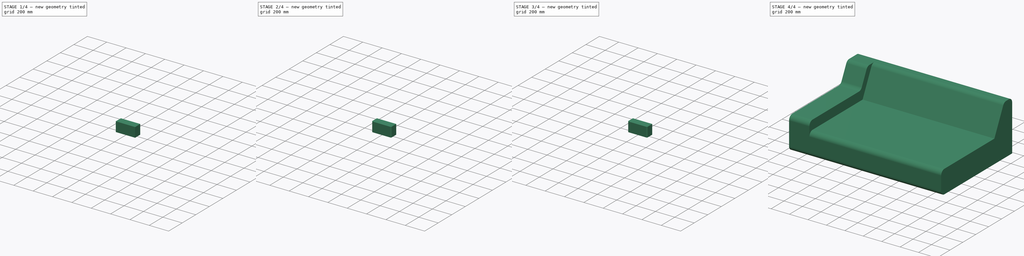
[diagram: build sequence overview — one tinted view per stage of 4, left to right]
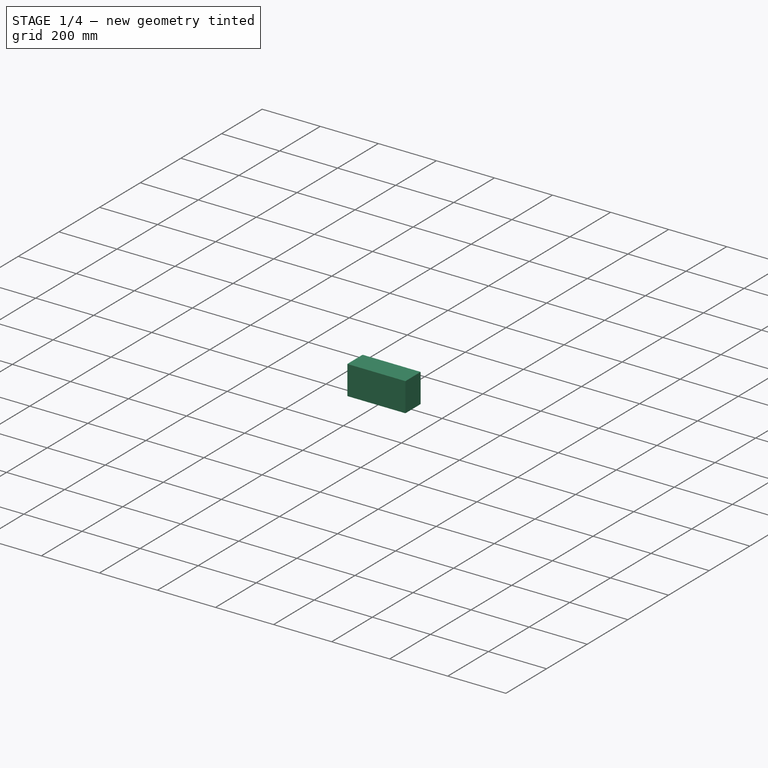
[diagram: stage 1 of 4 — iso view after this stage's code; geometry added in this stage tinted green]
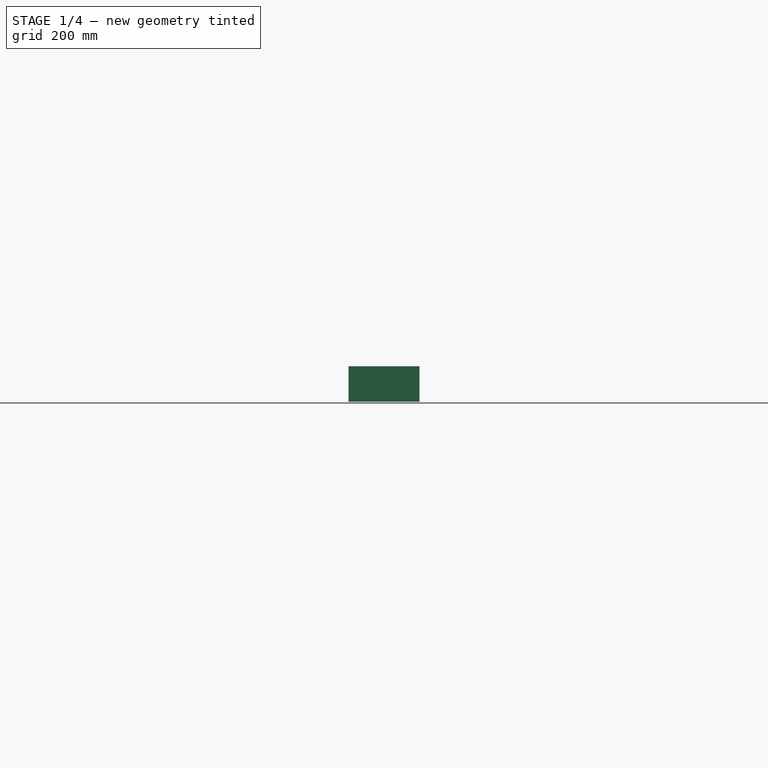
[diagram: stage 1 of 4 — front view after this stage's code; geometry added in this stage tinted green]
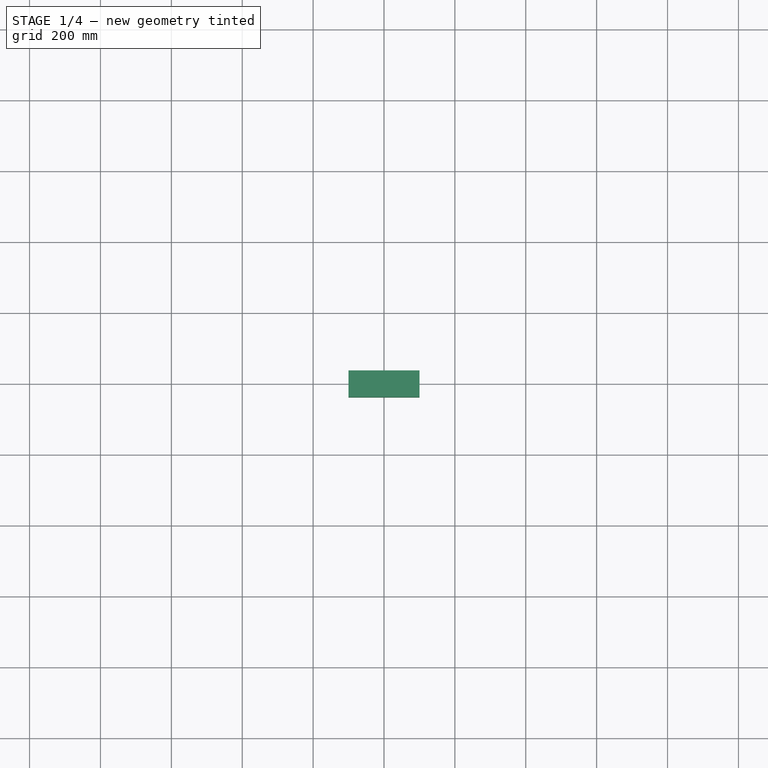
[diagram: stage 1 of 4 — top view after this stage's code; geometry added in this stage tinted green]
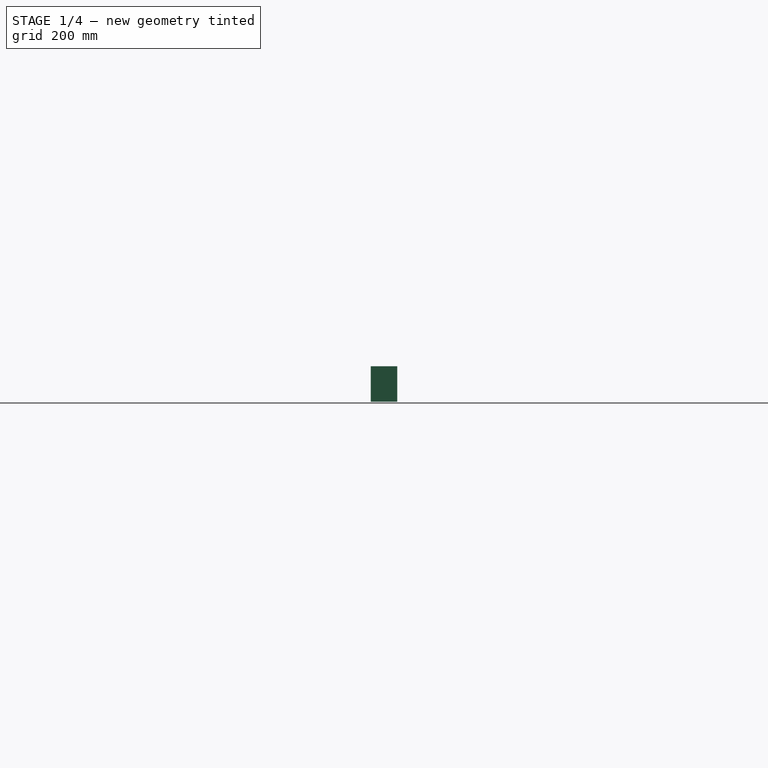
[diagram: stage 1 of 4 — right view after this stage's code; geometry added in this stage tinted green]
FCSTD DOCUMENT  (FreeCAD 0.19R16694 (Git))
Label: couch
License: Public Domain
LicenseURL: http://en.wikipedia.org/wiki/Public_domain
objects: Sketcher::SketchObject×6, PartDesign::Pad×5, PartDesign::Fillet×5, PartDesign::Body×5, PartDesign::Pocket×1
note: 28 computed .brp shape members not serialized (recipe doc carries the construction recipe); baked Part::Feature solids carry a one-line shape summary decoded from their .brp

FEATURE [PartDesign::Body] Body002  label="foot front right"
  Group = -> [Sketch004,Pad002,Fillet002]
  Origin = -> Origin002
  Placement = pos=(1350,-400,0) rot=(0,0,1;0rad)
  Tip = -> Fillet002
FEATURE [Sketcher::SketchObject] Sketch005
  MapMode = 5
  Support = -> [XY_Plane003]
  sketch-geometry (4):
    g0: LineSegment StartX=-100 StartY=37.5 StartZ=0 EndX=100 EndY=37.5 EndZ=0
    g1: LineSegment StartX=100 StartY=37.5 StartZ=0 EndX=100 EndY=-37.5 EndZ=0
    g2: LineSegment StartX=100 StartY=-37.5 StartZ=0 EndX=-100 EndY=-37.5 EndZ=0
    g3: LineSegment StartX=-100 StartY=-37.5 StartZ=0 EndX=-100 EndY=37.5 EndZ=0
  constraints (10):
    c: Coincident(g0,g1)
    c: Coincident(g1,g2)
    c: Coincident(g2,g3)
    c: Coincident(g3,g0)
    c: Horizontal(g2)
    c: Distance(g0) = 200
    c: Distance(g1) = 75
    c: Symmetric(g0,g2,g-1)
    c: Vertical(g1)
    c: Symmetric(g0,g0,g-2)
FEATURE [PartDesign::Pad] Pad003
  Length = 100
  Length2 = 100
  Profile = -> Sketch005
  Reversed = true
  Type = 0
FEATURE [PartDesign::Body] Body003  label="foot back left"
  Group = -> [Sketch005,Pad003,Fillet003]
  Origin = -> Origin003
  Placement = pos=(300,400,0) rot=(0,0,1;0rad)
  Tip = -> Fillet003
FEATURE [Sketcher::SketchObject] Sketch006
  MapMode = 5
  Support = -> [XY_Plane004]
  sketch-geometry (4):
    g0: LineSegment StartX=-100 StartY=37.5 StartZ=0 EndX=100 EndY=37.5 EndZ=0
    g1: LineSegment StartX=100 StartY=37.5 StartZ=0 EndX=100 EndY=-37.5 EndZ=0
    g2: LineSegment StartX=100 StartY=-37.5 StartZ=0 EndX=-100 EndY=-37.5 EndZ=0
    g3: LineSegment StartX=-100 StartY=-37.5 StartZ=0 EndX=-100 EndY=37.5 EndZ=0
  constraints (10):
    c: Coincident(g0,g1)
    c: Coincident(g1,g2)
    c: Coincident(g2,g3)
    c: Coincident(g3,g0)
    c: Horizontal(g2)
    c: Distance(g0) = 200
    c: Distance(g1) = 75
    c: Symmetric(g0,g2,g-1)
    c: Vertical(g1)
    c: Symmetric(g0,g0,g-2)
FEATURE [PartDesign::Pad] Pad004
  Length = 100
  Length2 = 100
  Profile = -> Sketch006
  Reversed = true
  Type = 0
FEATURE [PartDesign::Fillet] Fillet004
  Base = -> Pad004 [Edge5,Edge8]
  BaseFeature = -> Pad004
  Radius = 10
FEATURE [PartDesign::Body] Body004  label="foot back right"
  Group = -> [Sketch006,Pad004,Fillet004]
  Origin = -> Origin004
  Placement = pos=(1350,400,0) rot=(0,0,1;0rad)
  Tip = -> Fillet004
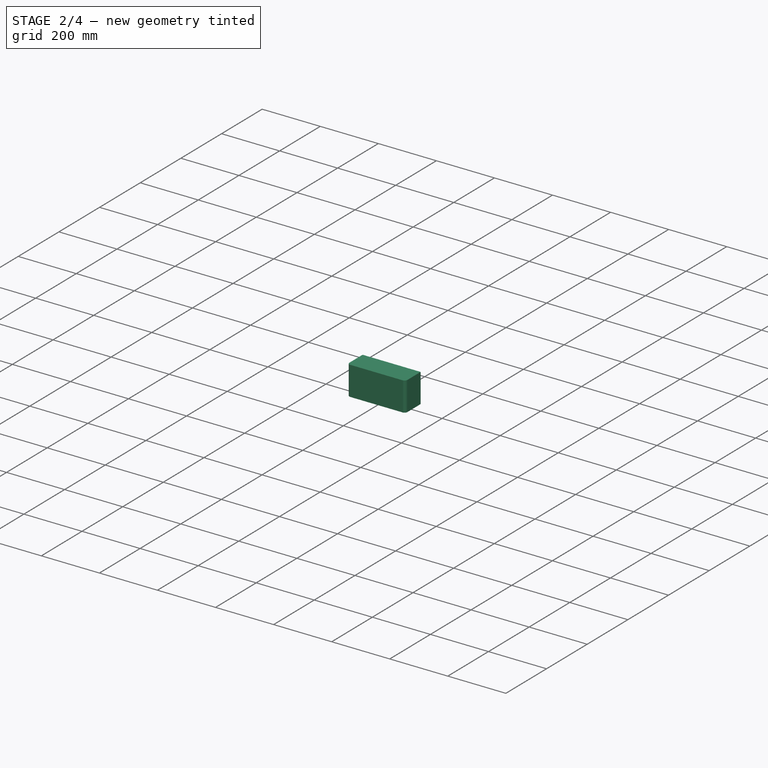
[diagram: stage 2 of 4 — iso view after this stage's code; geometry added in this stage tinted green]
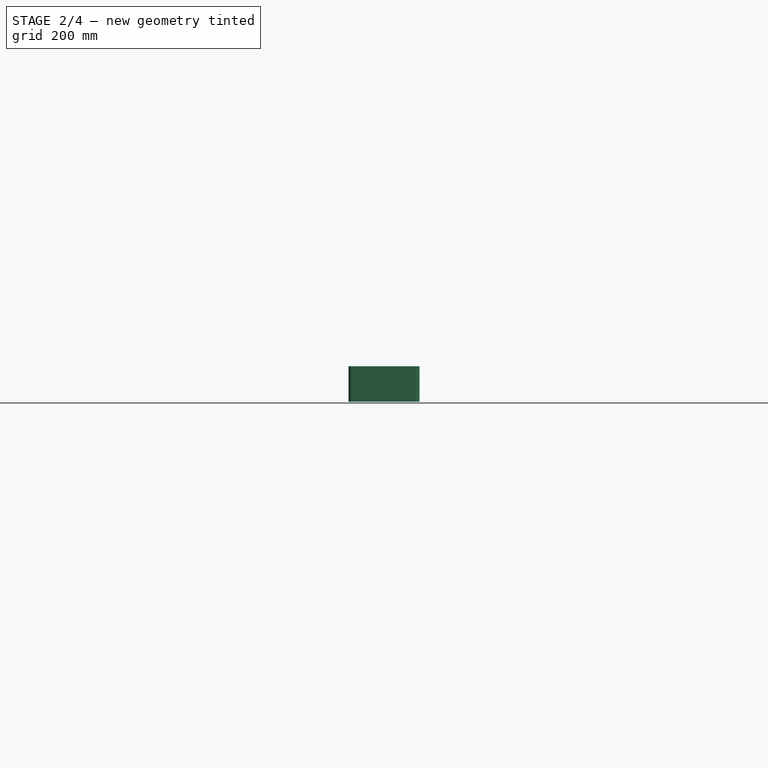
[diagram: stage 2 of 4 — front view after this stage's code; geometry added in this stage tinted green]
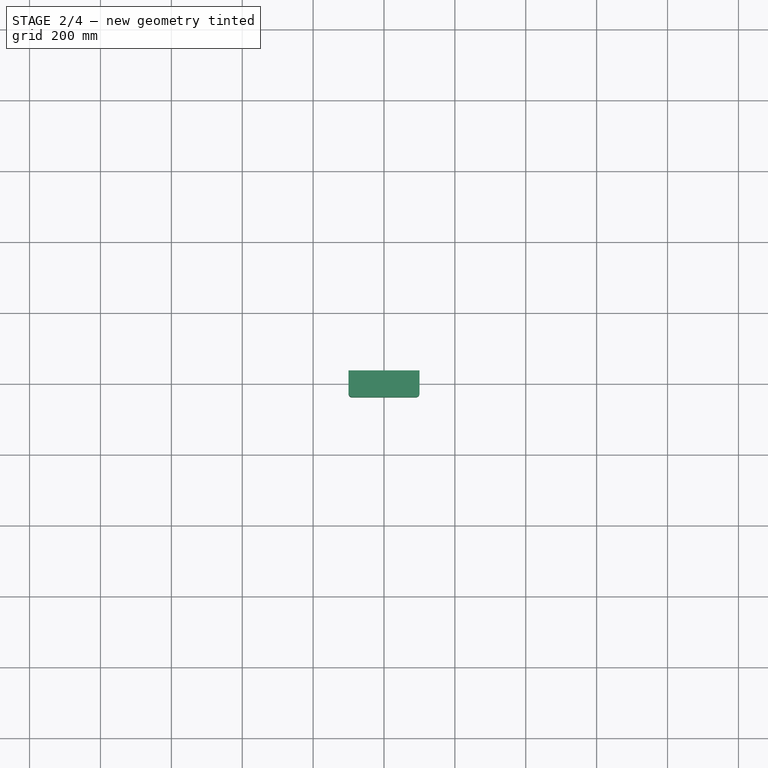
[diagram: stage 2 of 4 — top view after this stage's code; geometry added in this stage tinted green]
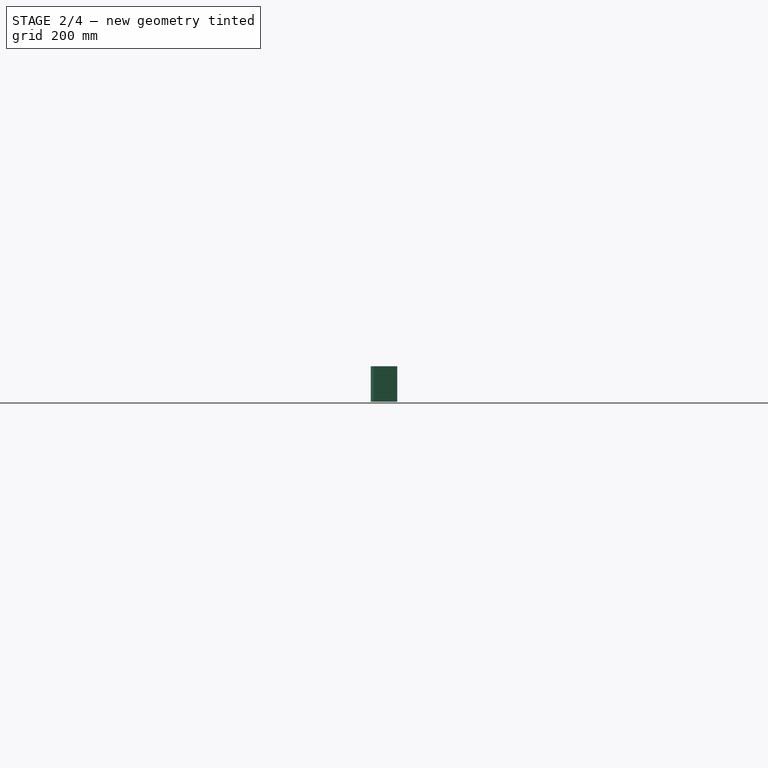
[diagram: stage 2 of 4 — right view after this stage's code; geometry added in this stage tinted green]
FEATURE [PartDesign::Body] Body  label="foot front left"
  Group = -> [Sketch,Pad,Fillet001]
  Origin = -> Origin
  Placement = pos=(300,-400,0) rot=(0,0,1;0rad)
  Tip = -> Fillet001
FEATURE [Sketcher::SketchObject] Sketch004
  MapMode = 5
  Support = -> [XY_Plane002]
  sketch-geometry (4):
    g0: LineSegment StartX=-100 StartY=37.5 StartZ=0 EndX=100 EndY=37.5 EndZ=0
    g1: LineSegment StartX=100 StartY=37.5 StartZ=0 EndX=100 EndY=-37.5 EndZ=0
    g2: LineSegment StartX=100 StartY=-37.5 StartZ=0 EndX=-100 EndY=-37.5 EndZ=0
    g3: LineSegment StartX=-100 StartY=-37.5 StartZ=0 EndX=-100 EndY=37.5 EndZ=0
  constraints (10):
    c: Coincident(g0,g1)
    c: Coincident(g1,g2)
    c: Coincident(g2,g3)
    c: Coincident(g3,g0)
    c: Horizontal(g2)
    c: Distance(g0) = 200
    c: Distance(g1) = 75
    c: Symmetric(g0,g2,g-1)
    c: Vertical(g1)
    c: Symmetric(g0,g0,g-2)
FEATURE [PartDesign::Pad] Pad002
  Length = 100
  Length2 = 100
  Profile = -> Sketch004
  Reversed = true
  Type = 0
FEATURE [PartDesign::Fillet] Fillet002
  Base = -> Pad002 [Edge5,Edge8]
  BaseFeature = -> Pad002
  Radius = 10
FEATURE [PartDesign::Fillet] Fillet003
  Base = -> Pad003 [Edge5,Edge8]
  BaseFeature = -> Pad003
  Radius = 10
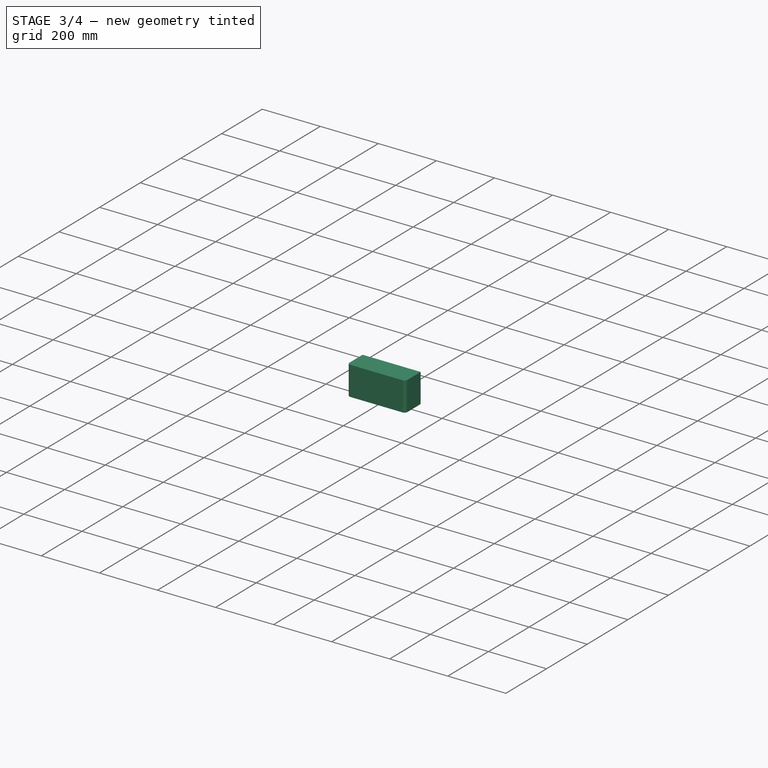
[diagram: stage 3 of 4 — iso view after this stage's code; geometry added in this stage tinted green]
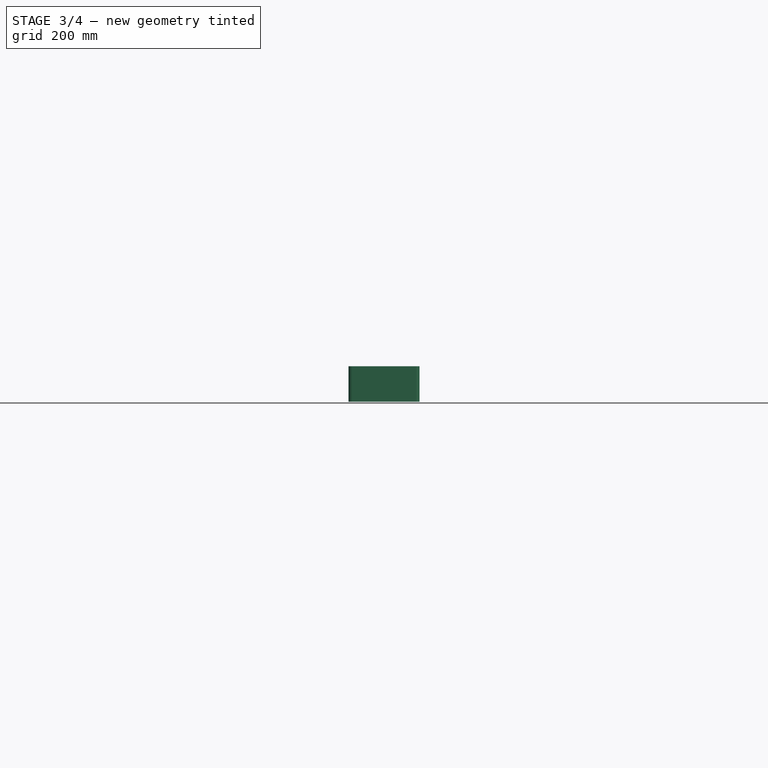
[diagram: stage 3 of 4 — front view after this stage's code; geometry added in this stage tinted green]
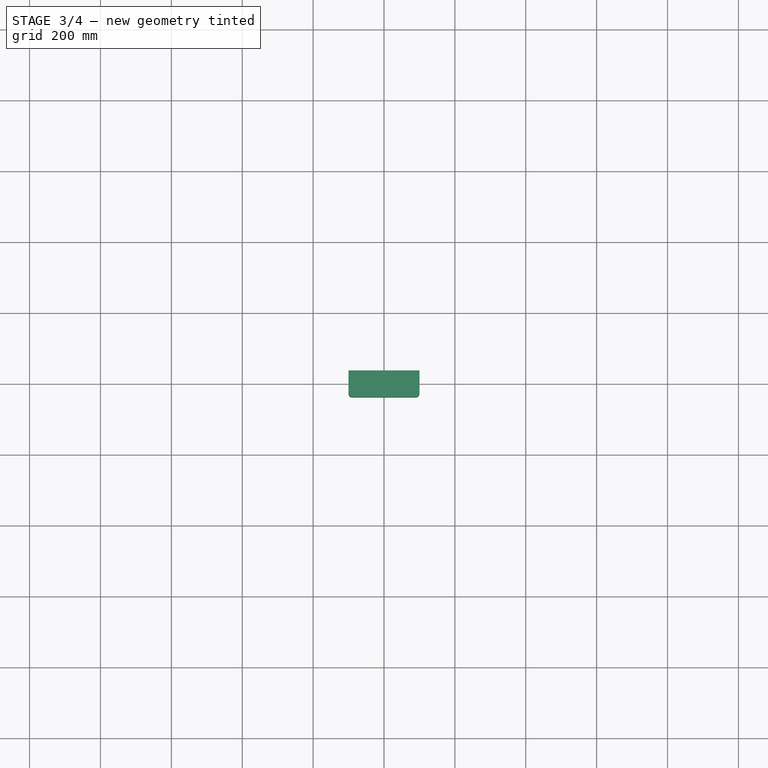
[diagram: stage 3 of 4 — top view after this stage's code; geometry added in this stage tinted green]
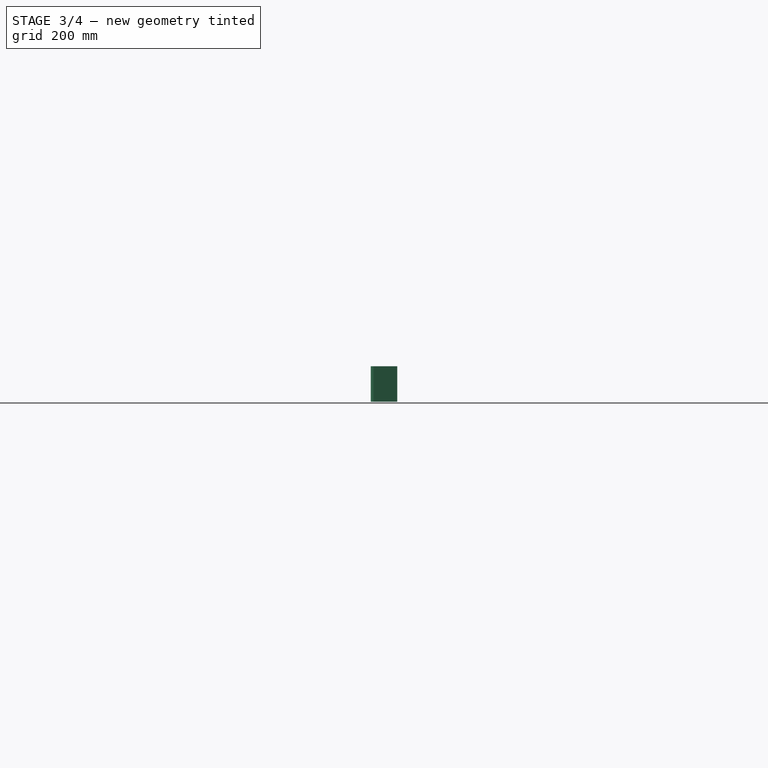
[diagram: stage 3 of 4 — right view after this stage's code; geometry added in this stage tinted green]
FEATURE [PartDesign::Body] Body001  label="base"
  Group = -> [Sketch002,Pad001,Sketch003,Pocket,Fillet]
  Origin = -> Origin001
  Tip = -> Fillet
FEATURE [Sketcher::SketchObject] Sketch
  MapMode = 5
  Support = -> [XY_Plane]
  sketch-geometry (4):
    g0: LineSegment StartX=-100 StartY=37.5 StartZ=0 EndX=100 EndY=37.5 EndZ=0
    g1: LineSegment StartX=100 StartY=37.5 StartZ=0 EndX=100 EndY=-37.5 EndZ=0
    g2: LineSegment StartX=100 StartY=-37.5 StartZ=0 EndX=-100 EndY=-37.5 EndZ=0
    g3: LineSegment StartX=-100 StartY=-37.5 StartZ=0 EndX=-100 EndY=37.5 EndZ=0
  constraints (10):
    c: Coincident(g0,g1)
    c: Coincident(g1,g2)
    c: Coincident(g2,g3)
    c: Coincident(g3,g0)
    c: Horizontal(g2)
    c: Distance(g0) = 200
    c: Distance(g1) = 75
    c: Symmetric(g0,g2,g-1)
    c: Vertical(g1)
    c: Symmetric(g0,g0,g-2)
FEATURE [PartDesign::Pad] Pad
  Length = 100
  Length2 = 100
  Profile = -> Sketch
  Reversed = true
  Type = 0
FEATURE [PartDesign::Fillet] Fillet001
  Base = -> Pad [Edge5,Edge8]
  BaseFeature = -> Pad
  Radius = 10
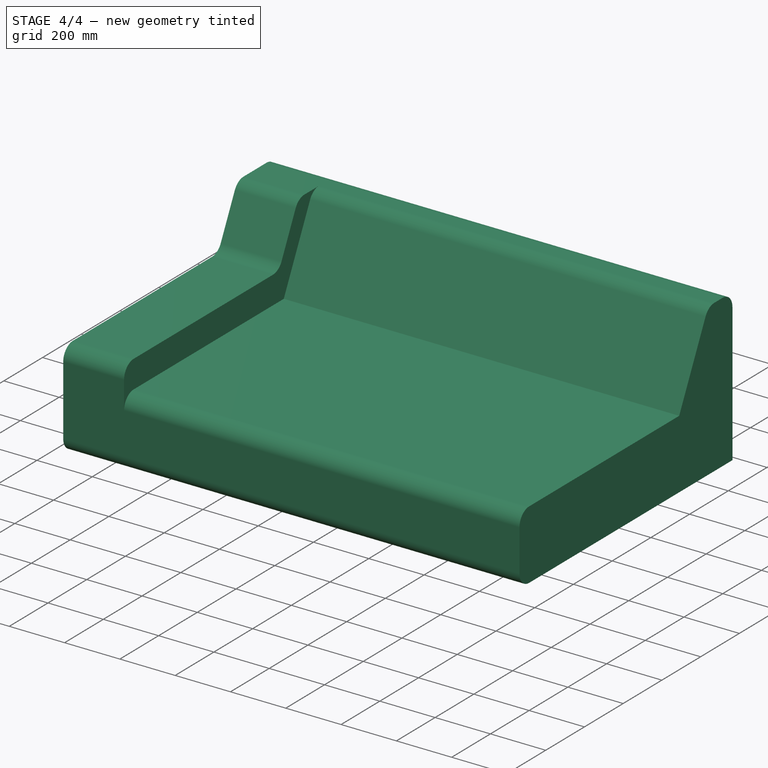
[diagram: stage 4 of 4 — iso view after this stage's code; geometry added in this stage tinted green]
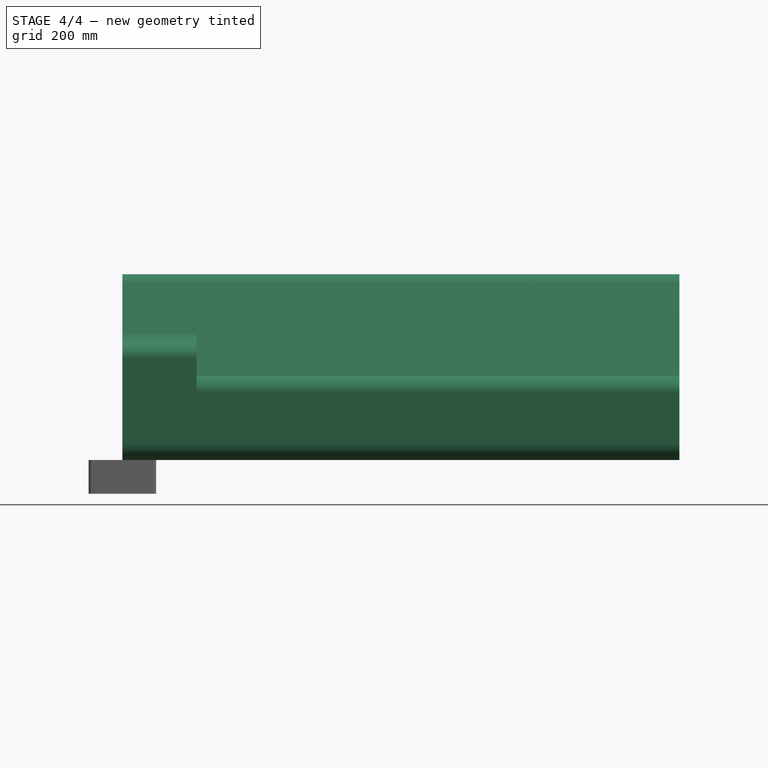
[diagram: stage 4 of 4 — front view after this stage's code; geometry added in this stage tinted green]
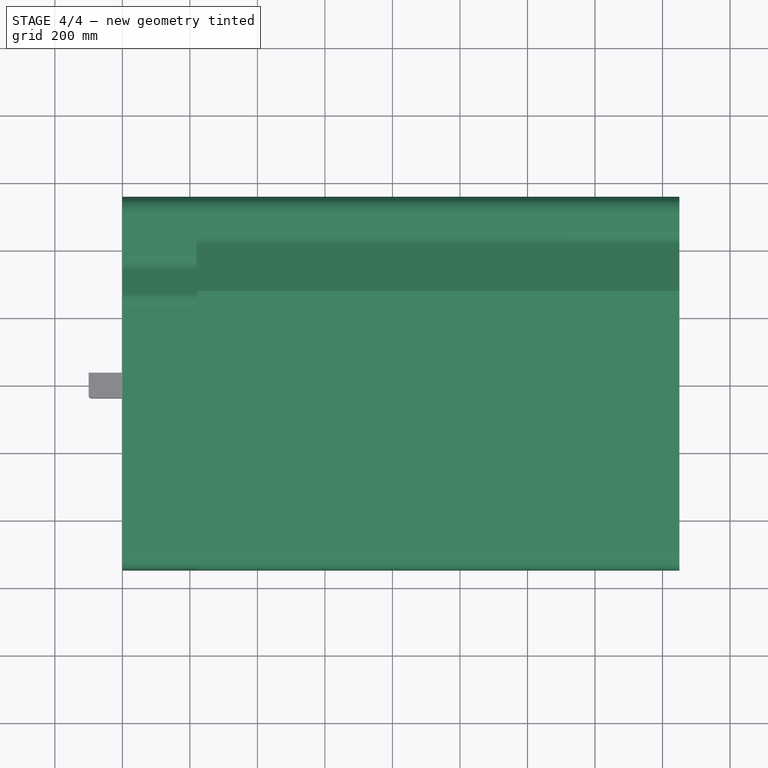
[diagram: stage 4 of 4 — top view after this stage's code; geometry added in this stage tinted green]
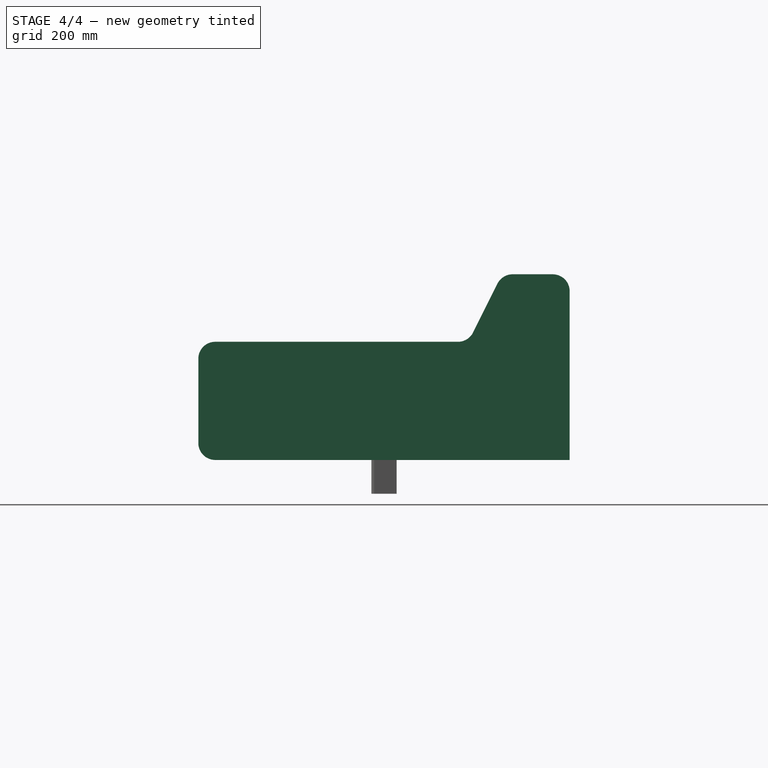
[diagram: stage 4 of 4 — right view after this stage's code; geometry added in this stage tinted green]
FEATURE [Sketcher::SketchObject] Sketch002
  MapMode = 5
  Placement = pos=(0,0,0) rot=(0.57735,0.57735,0.57735;2.0944rad)
  Support = -> [YZ_Plane001]
  sketch-geometry (6):
    g0: LineSegment StartX=-550 StartY=350 StartZ=0 EndX=250 EndY=350 EndZ=0
    g1: LineSegment StartX=250 StartY=350 StartZ=0 EndX=350 EndY=550 EndZ=0
    g2: LineSegment StartX=350 StartY=550 StartZ=0 EndX=550 EndY=550 EndZ=0
    g3: LineSegment StartX=550 StartY=550 StartZ=0 EndX=550 EndY=0 EndZ=0
    g4: LineSegment StartX=550 StartY=0 StartZ=0 EndX=-550 EndY=0 EndZ=0
    g5: LineSegment StartX=-550 StartY=0 StartZ=0 EndX=-550 EndY=350 EndZ=0
  constraints (17):
    c: Horizontal(g0)
    c: Coincident(g0,g1)
    c: Coincident(g1,g2)
    c: Horizontal(g2)
    c: Coincident(g2,g3)
    c: PointOnObject(g3,g-1)
    c: Vertical(g3)
    c: Coincident(g3,g4)
    c: Coincident(g4,g5)
    c: Coincident(g5,g0)
    c: Vertical(g5)
    c: Distance(g4) = 1100
    c: Distance(g3) = 550
    c: Distance(g5) = 350
    c: Distance(g0) = 800
    c: Distance(g2) = 200
    c: Symmetric(g4,g3,g-2)
FEATURE [PartDesign::Pad] Pad001
  Length = 1650
  Length2 = 100
  Placement = pos=(0,0,0) rot=(0.57735,0.57735,0.57735;2.0944rad)
  Profile = -> Sketch002
  Type = 0
FEATURE [Sketcher::SketchObject] Sketch003
  ExternalGeometry = -> [Pad001]
  MapMode = 5
  Placement = pos=(1650,-7.327e-13,5.496e-13) rot=(0.57735,0.57735,0.57735;2.0944rad)
  Support = -> [Pad001]
  sketch-geometry (6):
    g0: LineSegment StartX=-550 StartY=350 StartZ=0 EndX=250 EndY=350 EndZ=0
    g1: LineSegment StartX=250 StartY=350 StartZ=0 EndX=350 EndY=550 EndZ=0
    g2: LineSegment StartX=350 StartY=550 StartZ=0 EndX=425 EndY=550 EndZ=0
    g3: LineSegment StartX=425 StartY=550 StartZ=0 EndX=275 EndY=250 EndZ=0
    g4: LineSegment StartX=275 StartY=250 StartZ=0 EndX=-550 EndY=250 EndZ=0
    g5: LineSegment StartX=-550 StartY=250 StartZ=0 EndX=-550 EndY=350 EndZ=0
  constraints (15):
    c: Coincident(g-3,g0)
    c: Coincident(g0,g-4)
    c: Coincident(g0,g1)
    c: Coincident(g1,g-4)
    c: Coincident(g1,g2)
    c: Horizontal(g2)
    c: Coincident(g2,g3)
    c: Coincident(g3,g4)
    c: Horizontal(g4)
    c: Coincident(g4,g5)
    c: Coincident(g5,g0)
    c: Vertical(g5)
    c: Parallel(g1,g3)
    c: Distance(g5) = 100
    c: Distance(g2) = 75
FEATURE [PartDesign::Pocket] Pocket
  BaseFeature = -> Pad001
  Length = 1430
  Length2 = 100
  Placement = pos=(0,0,0) rot=(0.57735,0.57735,0.57735;2.0944rad)
  Profile = -> Sketch003
  Type = 0
  expr: Length = 1650 - 220
FEATURE [PartDesign::Fillet] Fillet
  Base = -> Pocket [Edge10,Edge4,Edge2,Edge16,Edge21,Edge19,Edge18]
  BaseFeature = -> Pocket
  Placement = pos=(0,0,0) rot=(0.57735,0.57735,0.57735;2.0944rad)
  Radius = 50
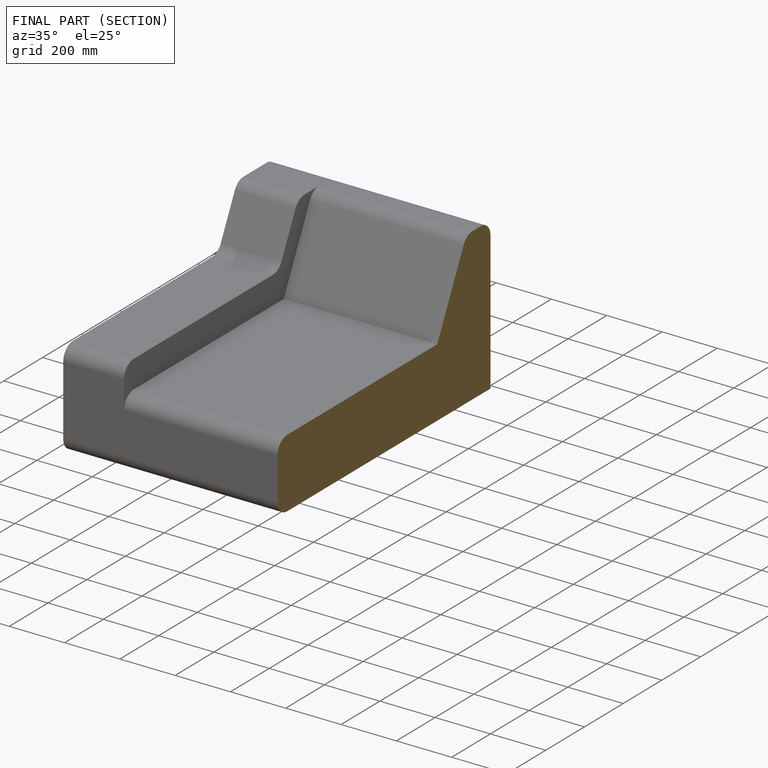
[diagram: finished part — half-section view (interior)]
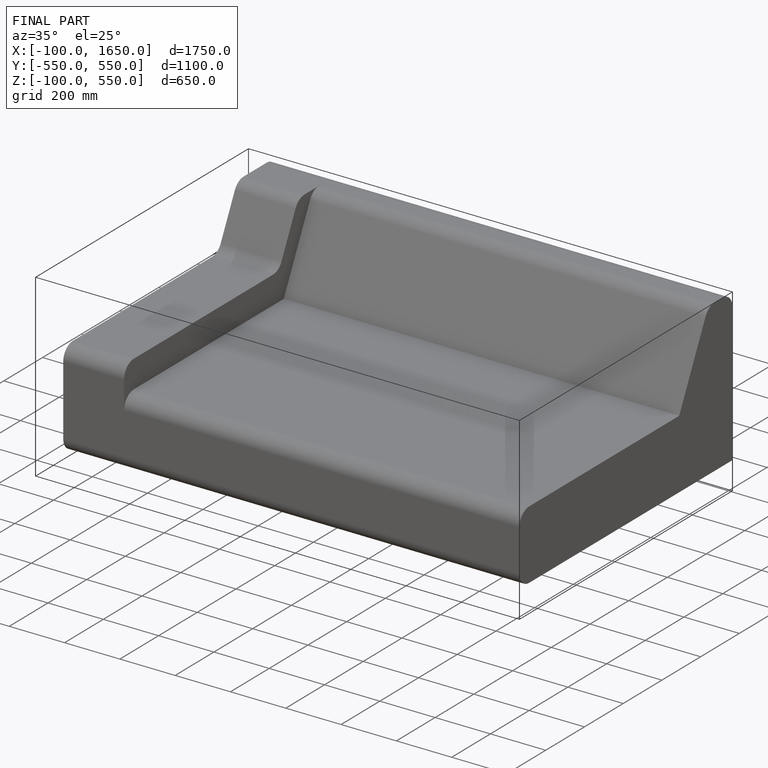
[diagram: finished part — iso view with bounding-box wireframe]
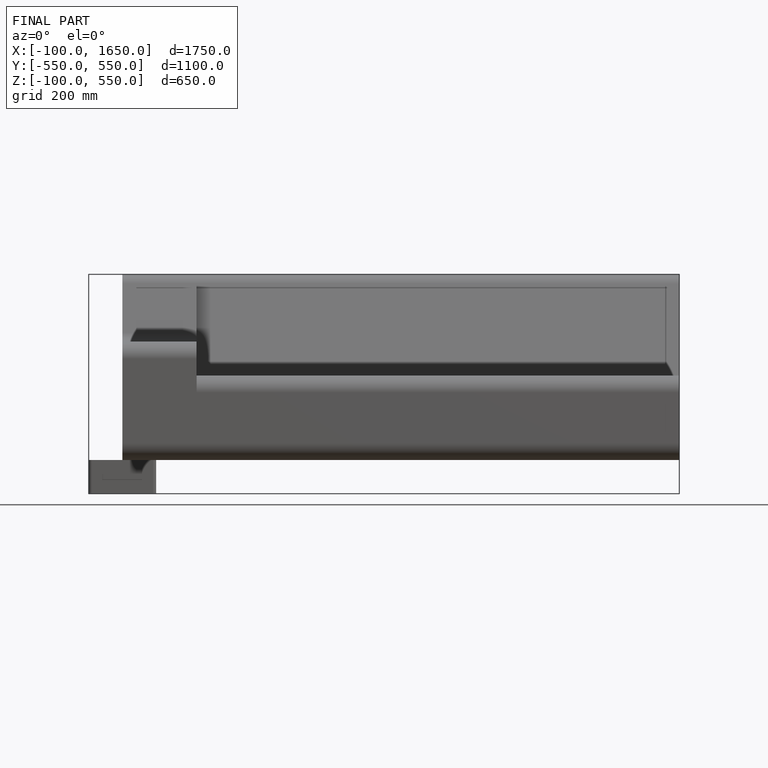
[diagram: finished part — front view with bounding-box wireframe]
